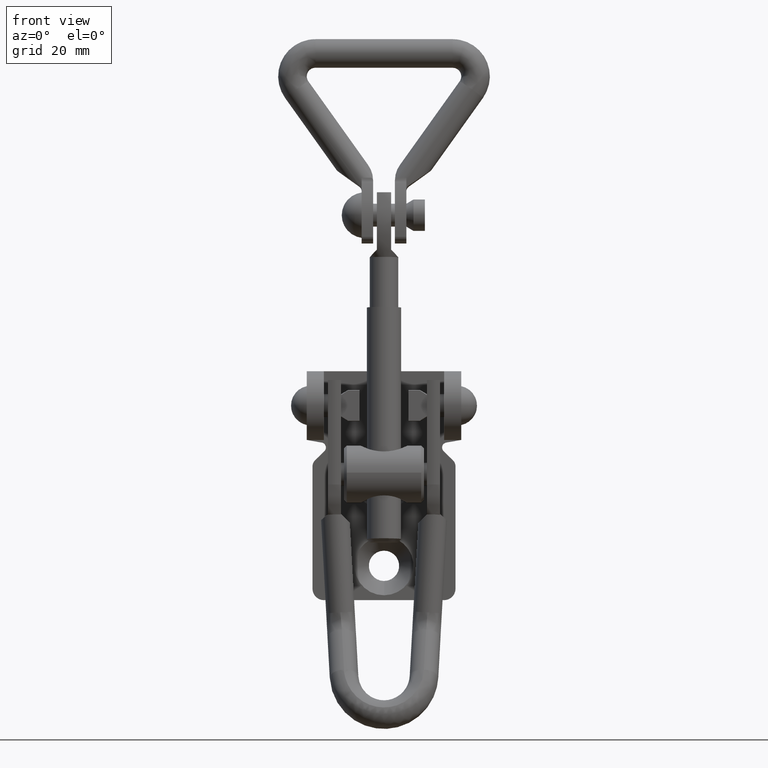
[diagram: clean part render]
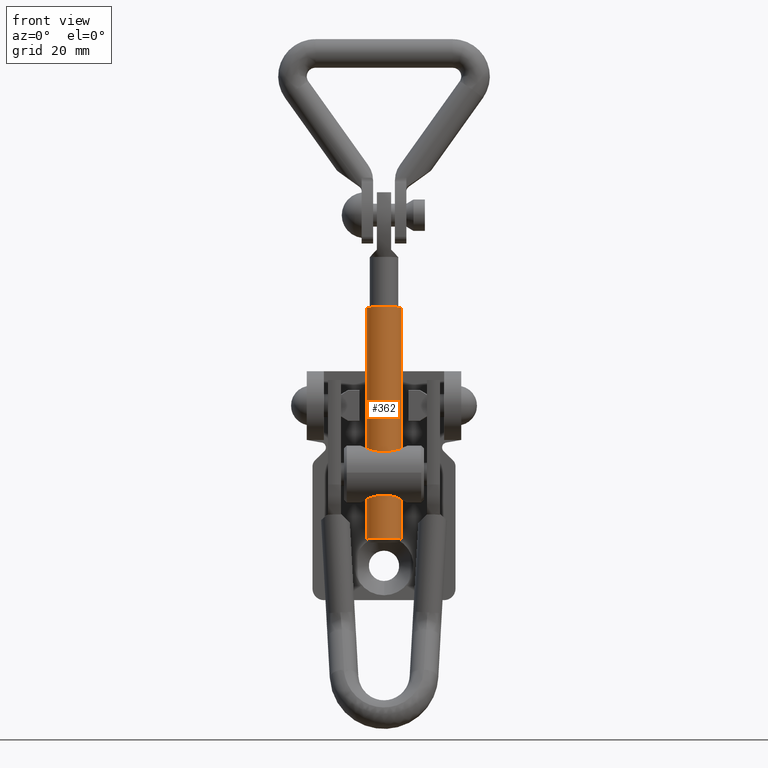
[diagram: same view with one face highlighted and labeled with its STEP entity id]
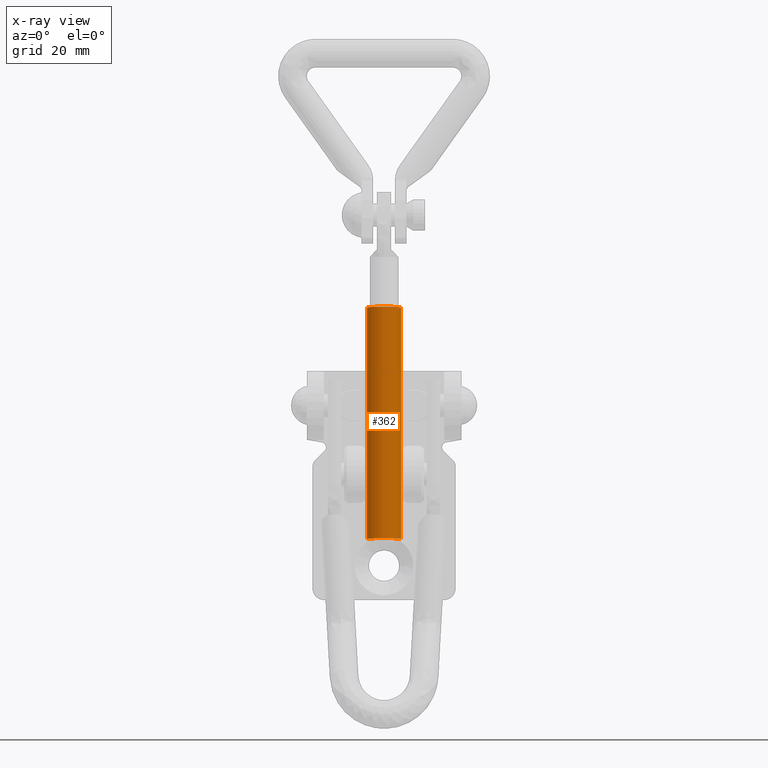
[diagram: x-ray of the same camera — body ghosted, the highlighted face saturated]
A machine part, front view. The second image highlights one B-rep face of the part: STEP entity #362.
The next image is the same camera in x-ray: the body ghosted, the highlighted face saturated — about 0% of this face is hidden behind the body in this view.
In plain terms, the highlighted cylindrical surface (edge-blend (fillet) strip) has radius 3 mm, axis along (0, 0.0488, 0.9988).
Its self-contained STEP definition (entity closure, byte-faithful):
#362=ADVANCED_FACE('',(#1833),#1832,.T.);
#1832=CYLINDRICAL_SURFACE('',#3375,3.00000000041E+00);
#1833=FACE_OUTER_BOUND('',#3376,.T.);
#3372=CARTESIAN_POINT('',(0.00000000000E+00,4.17230694438E-11,0.00000000000E+00));
#3373=DIRECTION('',(0.00000000000E+00,-0.00000000000E+00,1.00000000000E+00));
#3374=DIRECTION('',(1.00000000000E+00,-0.00000000000E+00,-0.00000000000E+00));
#3375=AXIS2_PLACEMENT_3D('',#3372,#3373,#3374);
#3376=EDGE_LOOP('',(#4755,#4756,#4757,#4758));
#4755=ORIENTED_EDGE('',*,*,#5378,.F.);
#4756=ORIENTED_EDGE('',*,*,#5375,.T.);
#4757=ORIENTED_EDGE('',*,*,#5358,.T.);
#4758=ORIENTED_EDGE('',*,*,#5377,.F.);
#5358=EDGE_CURVE('',#7636,#7637,#7638,.T.);
#5375=EDGE_CURVE('',#7748,#7636,#7749,.T.);
#5377=EDGE_CURVE('',#7755,#7637,#7762,.T.);
#5378=EDGE_CURVE('',#7748,#7755,#7768,.T.);
#7636=VERTEX_POINT('',#10416);
#7637=VERTEX_POINT('',#10417);
#7638=CIRCLE('',#10421,3.00000000033E+00);
#7748=VERTEX_POINT('',#10513);
#7749=(BOUNDED_CURVE() B_SPLINE_CURVE(1,(#10514,#10515),.UNSPECIFIED.,.F.,.F.) B_SPLINE_CURVE_WITH_KNOTS((2,2),(8.33333335810E-02,9.16666666255E-01),.UNSPECIFIED.) CURVE() GEOMETRIC_REPRESENTATION_ITEM() RATIONAL_B_SPLINE_CURVE((1.00000000000E+00,1.00000000000E+00)) REPRESENTATION_ITEM('') );
#7755=VERTEX_POINT('',#10516);
#7762=(BOUNDED_CURVE() B_SPLINE_CURVE(1,(#10521,#10522),.UNSPECIFIED.,.F.,.F.) B_SPLINE_CURVE_WITH_KNOTS((2,2),(8.33333333333E-02,9.16666666667E-01),.UNSPECIFIED.) CURVE() GEOMETRIC_REPRESENTATION_ITEM() RATIONAL_B_SPLINE_CURVE((7.50000000000E-01,7.50000000000E-01)) REPRESENTATION_ITEM('') );
#7768=CIRCLE('',#10526,3.00000000049E+00);
#10416=CARTESIAN_POINT('',(3.00000000033E+00,4.17229214141E-11,-1.61999999999E+01));
#10417=CARTESIAN_POINT('',(-3.00000000033E+00,4.17230694438E-11,-1.61999999999E+01));
#10418=CARTESIAN_POINT('',(0.00000000000E+00,4.17230694438E-11,-1.61999999999E+01));
#10419=DIRECTION('',(-0.00000000000E+00,0.00000000000E+00,-1.00000000000E+00));
#10420=DIRECTION('',(-1.00000000000E+00,-1.22460635382E-16,0.00000000000E+00));
#10421=AXIS2_PLACEMENT_3D('',#10418,#10419,#10420);
#10513=CARTESIAN_POINT('',(3.00000000049E+00,4.17229214141E-11,-5.66999999993E+01));
#10514=CARTESIAN_POINT('',(3.00000000041E+00,4.17230694438E-11,-5.66999999873E+01));
#10515=CARTESIAN_POINT('',(3.00000000041E+00,4.17230694438E-11,-1.62000000199E+01));
#10516=CARTESIAN_POINT('',(-3.00000000049E+00,4.17230694438E-11,-5.66999999993E+01));
#10521=CARTESIAN_POINT('',(-3.00000000041E+00,4.17230694438E-11,-5.66999999993E+01));
#10522=CARTESIAN_POINT('',(-3.00000000041E+00,4.17230694438E-11,-1.61999999999E+01));
#10523=CARTESIAN_POINT('',(0.00000000000E+00,4.17230694438E-11,-5.66999999993E+01));
#10524=DIRECTION('',(-0.00000000000E+00,0.00000000000E+00,-1.00000000000E+00));
#10525=DIRECTION('',(-1.00000000000E+00,-1.22460635382E-16,0.00000000000E+00));
#10526=AXIS2_PLACEMENT_3D('',#10523,#10524,#10525);